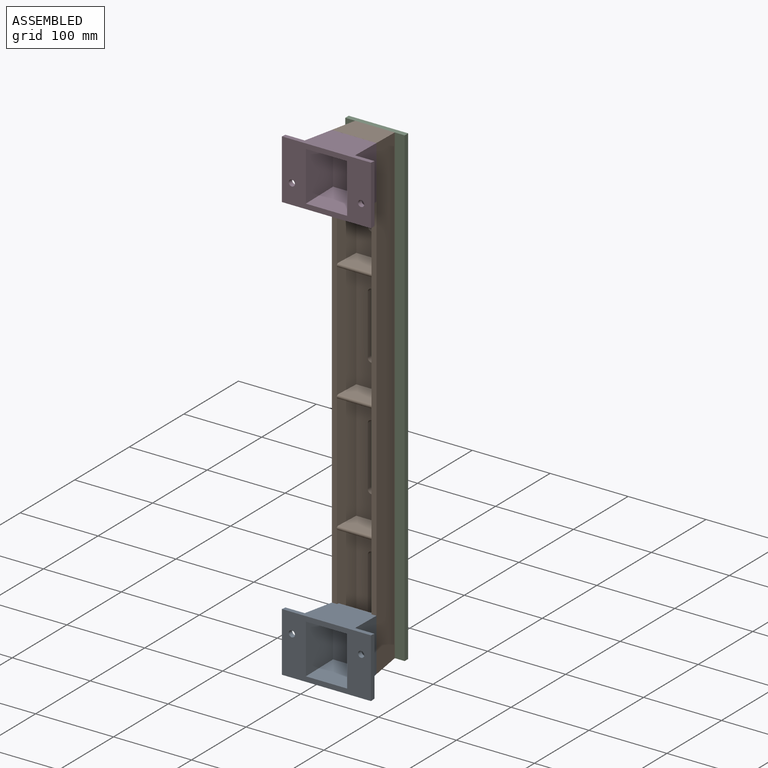
[diagram: assembled view]
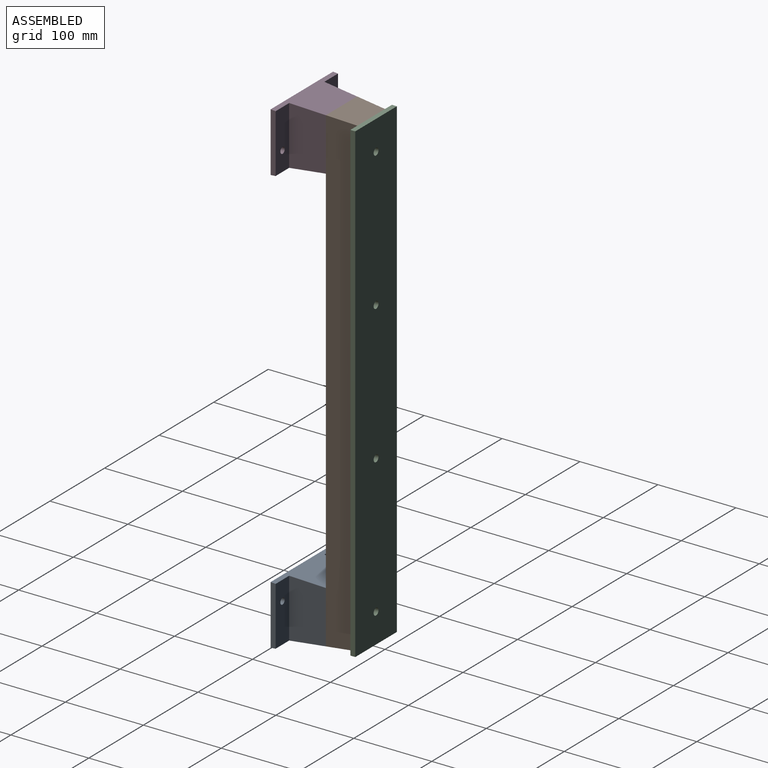
[diagram: assembled view, second angle]
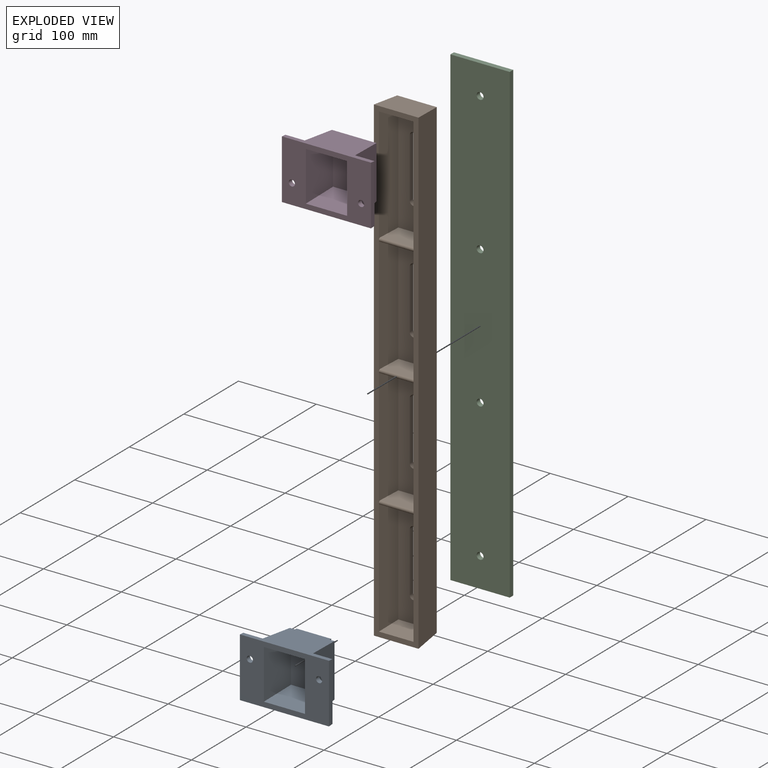
[diagram: exploded view]
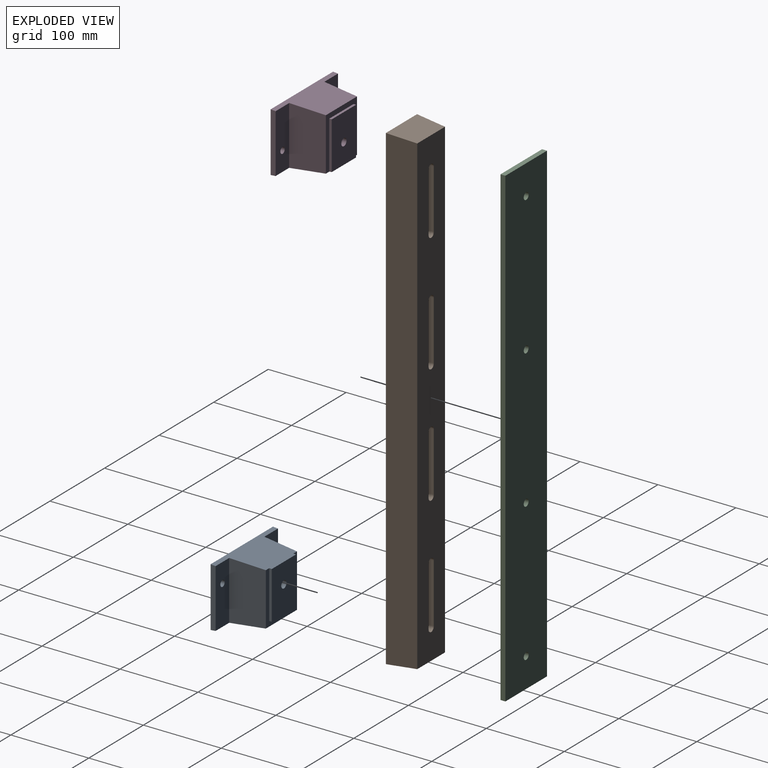
[diagram: exploded view, second angle]
ASSEMBLY  parts=4 mates=3
PART A: 22 faces, bbox 114.3x54x76.2 mm
  f0: plane 76.2x6.35mm, normal (1,0,0), area 480.5mm2, adj f3,f7,f15,f17
  f1: plane 76.2x6.35mm, normal (-1,0,0), area 480.5mm2, adj f2,f7,f15,f17
  f2: plane 75.14x24.87mm, normal (0,-1,0), area 1819.2mm2, adj f1,f15,f16,f17,f20
  f3: plane 75.14x24.87mm, normal (0,-1,0), area 1819.2mm2, adj f0,f15,f17,f18,f19
  f4: plane 61.12x44.45mm, normal (0,-1,0), area 2645.5mm2, adj f5,f6,f13,f17,f21
  f5: plane 61.38x3.18mm, normal (-1,0,0), area 194.5mm2, adj f4,f13,f14,f17
  f6: plane 61.38x3.18mm, normal (1,0,0), area 194.5mm2, adj f4,f13,f14,f17
  f7: plane 114.3x76.2mm, normal (0,1,0), area 5255.4mm2, adj f0,f1,f8,f9,f10,f11,f15,f17
  f8: plane 63.46x44.45mm, normal (-1,0.08,0), area 2665.1mm2, adj f7,f9,f11,f12
  f9: plane 52.88x44.45mm, normal (0,0.08,-1), area 2193.2mm2, adj f7,f8,f10,f12
  f10: plane 63.46x44.45mm, normal (1,0.08,0), area 2665.1mm2, adj f7,f9,f11,f12
  f11: plane 52.88x44.45mm, normal (0,0.08,1), area 2193.2mm2, adj f7,f8,f10,f12
  f12: plane 56.05x45.47mm, normal (0,1,0), area 2476.9mm2, adj f8,f9,f10,f11,f21
  f13: plane 44.45x3.18mm, normal (0,0,-1), area 141.1mm2, adj f4,f5,f6,f14
  f14: plane 67.73x57.15mm, normal (0,-1,0), area 1142.4mm2, adj f5,f6,f13,f15,f16,f17,f18
  f15: plane 114.3x50.8mm, normal (0,-0.08,-1), area 3442.8mm2, adj f0,f1,f2,f3,f7,f14,f16,f18
  f16: plane 75.14x44.45mm, normal (-1,-0.08,0), area 3186.3mm2, adj f2,f14,f15,f17
  f17: plane 114.3x53.98mm, normal (0,-0.08,1), area 3584.4mm2, adj f0,f1,f2,f3,f4,f5,f6,f7
  f18: plane 75.14x44.45mm, normal (1,-0.08,0), area 3186.3mm2, adj f3,f14,f15,f17
  f19: cylinder r=3.97mm len=7.94mm, axis (0,1,0), area 158.3mm2, adj f3,f7
  f20: cylinder r=3.97mm len=7.94mm, axis (0,1,0), area 158.3mm2, adj f2,f7
  f21: cylinder r=4.76mm len=9.53mm, axis (0,-1,0), area 285mm2, adj f4,f12
PART B: 45 faces, bbox 57.2x38.1x616 mm
  f0: plane 143.38x39.11mm, normal (0,-1,0), area 4811.3mm2, adj f3,f4,f16,f26,f41,f42,f43,f44
  f1: plane 146.05x39.11mm, normal (0,-1,0), area 4915.6mm2, adj f5,f6,f23,f28,f37,f38,f39,f40
  f2: plane 609.6x50.8mm, normal (0,1,0), area 27779.4mm2, adj f12,f13,f14,f15,f29,f30,f31,f32
  f3: plane 149.2x31.75mm, normal (1,-0.08,0), area 4625.1mm2, adj f0,f11,f16,f26,f27
  f4: plane 149.2x31.75mm, normal (-1,-0.08,0), area 4625.1mm2, adj f0,f11,f16,f26,f27
  f5: plane 152.4x31.75mm, normal (-1,-0.08,0), area 4682.8mm2, adj f1,f11,f23,f24,f27,f28
  f6: plane 152.4x31.75mm, normal (1,-0.08,0), area 4682.8mm2, adj f1,f11,f23,f24,f27,f28
  f7: plane 152.4x31.75mm, normal (-1,-0.08,0), area 4682.8mm2, adj f8,f11,f20,f21,f24,f25
  f8: plane 146.05x39.11mm, normal (0,-1,0), area 4915.6mm2, adj f7,f9,f20,f25,f33,f34,f35,f36
  f9: plane 152.4x31.75mm, normal (1,-0.08,0), area 4682.8mm2, adj f8,f11,f20,f21,f24,f25
  f10: plane 149.2x31.75mm, normal (-1,-0.08,0), area 4625.1mm2, adj f11,f18,f19,f21,f22
  f11: plane 615.95x57.15mm, normal (0,-1,0), area 8415.7mm2, adj f3,f4,f5,f6,f7,f9,f10,f12
  f12: plane 57.15x38.1mm, normal (0,0.08,1), area 2063.6mm2, adj f2,f11,f13,f15
  f13: plane 615.95x38.1mm, normal (-1,0.08,0), area 23427.7mm2, adj f2,f11,f12,f14
  f14: plane 57.15x38.1mm, normal (0,0.08,-1), area 2063.6mm2, adj f2,f11,f13,f15
  f15: plane 615.95x38.1mm, normal (1,0.08,0), area 23427.7mm2, adj f2,f11,f12,f14
  f16: plane 44.41x31.75mm, normal (0,-0.08,-1), area 1330.5mm2, adj f0,f3,f4,f11
  f17: plane 149.2x31.75mm, normal (1,-0.08,0), area 4625.1mm2, adj f11,f18,f19,f21,f22
  f18: plane 44.41x31.75mm, normal (0,-0.08,1), area 1330.5mm2, adj f10,f11,f17,f19
  f19: plane 143.38x39.11mm, normal (0,-1,0), area 4811.3mm2, adj f10,f17,f18,f22,f29,f30,f31,f32
  f20: plane 44.02x29.43mm, normal (0,-0.03,1), area 1223.9mm2, adj f7,f8,f9,f21
  f21: cylinder r=2.38mm len=44.41mm, axis (1,0,0), area 325.5mm2, adj f7,f9,f10,f17,f20,f22
  f22: plane 44.02x29.43mm, normal (0,-0.03,-1), area 1223.9mm2, adj f10,f17,f19,f21
  f23: plane 44.02x29.43mm, normal (0,-0.03,1), area 1223.9mm2, adj f1,f5,f6,f24
  f24: cylinder r=2.38mm len=44.41mm, axis (1,0,0), area 325.5mm2, adj f5,f6,f7,f9,f23,f25
  f25: plane 44.02x29.43mm, normal (0,-0.03,-1), area 1223.9mm2, adj f7,f8,f9,f24
  f26: plane 44.02x29.43mm, normal (0,-0.03,1), area 1223.9mm2, adj f0,f3,f4,f27
  f27: cylinder r=2.38mm len=44.41mm, axis (1,0,0), area 325.5mm2, adj f3,f4,f5,f6,f26,f28
  f28: plane 44.02x29.43mm, normal (0,-0.03,-1), area 1223.9mm2, adj f1,f5,f6,f27
  f29: cylinder r=4.76mm len=9.53mm, axis (0,1,0), area 95mm2, adj f2,f19,f30,f32
  f30: plane 76.2x6.35mm, normal (1,0,0), area 483.9mm2, adj f2,f19,f29,f31
  f31: cylinder r=4.76mm len=9.53mm, axis (0,1,0), area 95mm2, adj f2,f19,f30,f32
  f32: plane 76.2x6.35mm, normal (-1,0,0), area 483.9mm2, adj f2,f19,f29,f31
  f33: cylinder r=4.76mm len=9.53mm, axis (0,1,0), area 95mm2, adj f2,f8,f34,f36
  f34: plane 76.2x6.35mm, normal (1,0,0), area 483.9mm2, adj f2,f8,f33,f35
  f35: cylinder r=4.76mm len=9.53mm, axis (0,1,0), area 95mm2, adj f2,f8,f34,f36
  f36: plane 76.2x6.35mm, normal (-1,0,0), area 483.9mm2, adj f2,f8,f33,f35
  f37: plane 76.2x6.35mm, normal (-1,0,0), area 483.9mm2, adj f1,f2,f38,f40
  f38: cylinder r=4.76mm len=9.53mm, axis (0,1,0), area 95mm2, adj f1,f2,f37,f39
  f39: plane 76.2x6.35mm, normal (1,0,0), area 483.9mm2, adj f1,f2,f38,f40
  f40: cylinder r=4.76mm len=9.53mm, axis (0,1,0), area 95mm2, adj f1,f2,f37,f39
  f41: plane 76.2x6.35mm, normal (-1,0,0), area 483.9mm2, adj f0,f2,f42,f44
  f42: cylinder r=4.76mm len=9.53mm, axis (0,1,0), area 95mm2, adj f0,f2,f41,f43
  f43: plane 76.2x6.35mm, normal (1,0,0), area 483.9mm2, adj f0,f2,f42,f44
  f44: cylinder r=4.76mm len=9.53mm, axis (0,1,0), area 95mm2, adj f0,f2,f41,f43
PART C: 10 faces, bbox 76.2x6.4x609.6 mm
  f0: plane 76.2x6.35mm, normal (0,0,1), area 483.9mm2, adj f1,f3,f4,f5
  f1: plane 609.6x6.35mm, normal (-1,0,0), area 3871mm2, adj f0,f2,f4,f5
  f2: plane 76.2x6.35mm, normal (0,0,-1), area 483.9mm2, adj f1,f3,f4,f5
  f3: plane 609.6x6.35mm, normal (1,0,0), area 3871mm2, adj f0,f2,f4,f5
  f4: plane 609.6x76.2mm, normal (0,-1,0), area 46203.2mm2, adj f0,f1,f2,f3,f6,f7,f8,f9
  f5: plane 609.6x76.2mm, normal (0,1,0), area 46203.2mm2, adj f0,f1,f2,f3,f6,f7,f8,f9
  f6: cylinder r=4.45mm len=8.89mm, axis (0,-1,0), area 177.3mm2, adj f4,f5
  f7: cylinder r=4.45mm len=8.89mm, axis (0,-1,0), area 177.3mm2, adj f4,f5
  f8: cylinder r=4.45mm len=8.89mm, axis (0,-1,0), area 177.3mm2, adj f4,f5
  f9: cylinder r=4.45mm len=8.89mm, axis (0,-1,0), area 177.3mm2, adj f4,f5
PART D: same geometry as A
PLACE A rot(axis=(0,0,1),180deg) t=(25.42,-88.9,30.71)mm
PLACE B at identity
PLACE C t=(-12.7,6.35,0)mm
PLACE D rot(axis=(1,0,0),180deg) t=(25.42,-88.9,578.89)mm
MATE fastened B.f2 <-> C.f4  axis (0,1,0) through (25.4,0,304.8)mm
MATE fastened B.f11 <-> A.f14  axis (0,-1,0) through (3.2,-38.1,3.2)mm
MATE fastened D.f14 <-> B.f11  axis (0,1,0) through (3.2,-38.1,606.4)mm
